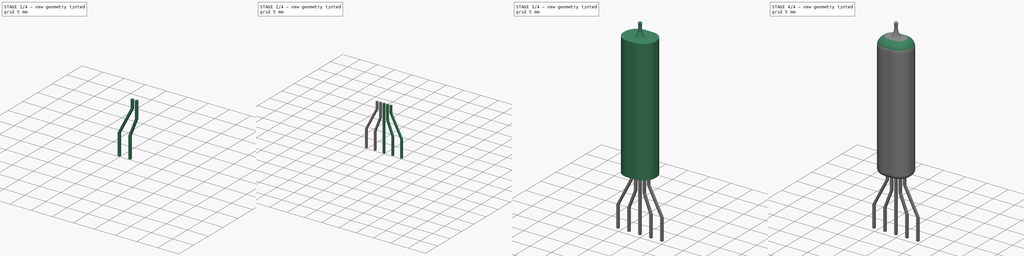
[diagram: build sequence overview — one tinted view per stage of 4, left to right]
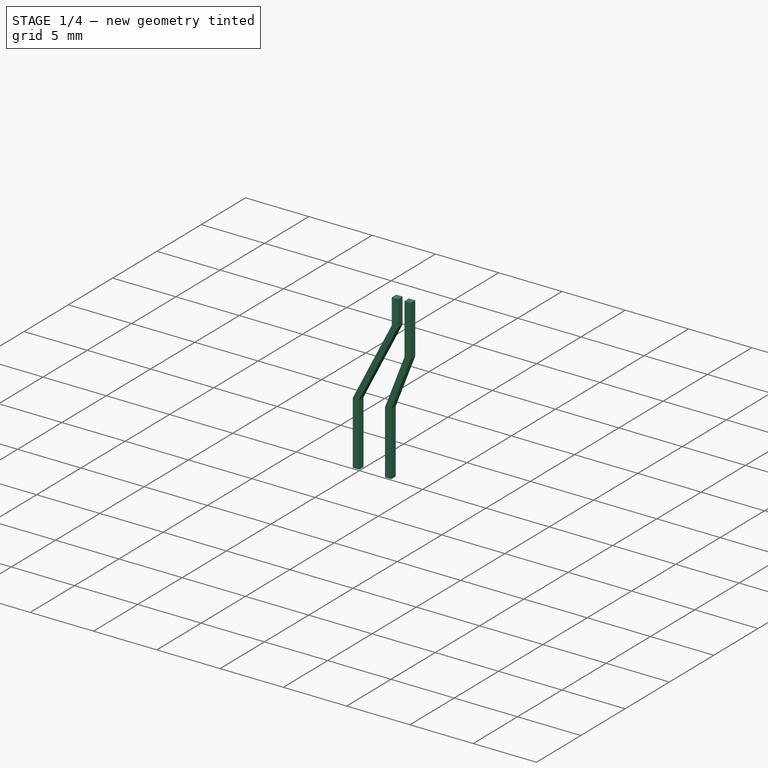
[diagram: stage 1 of 4 — iso view after this stage's code; geometry added in this stage tinted green]
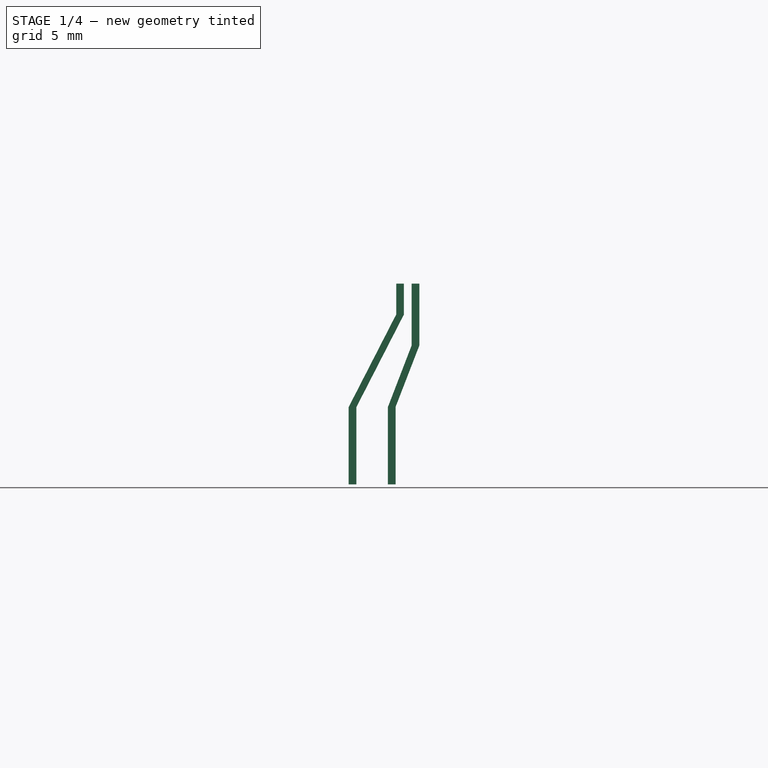
[diagram: stage 1 of 4 — front view after this stage's code; geometry added in this stage tinted green]
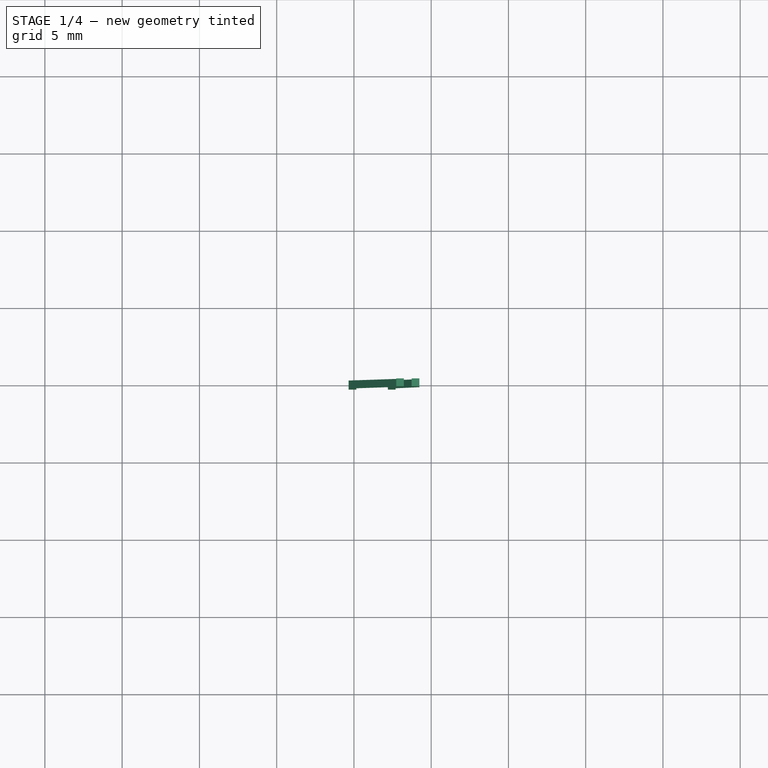
[diagram: stage 1 of 4 — top view after this stage's code; geometry added in this stage tinted green]
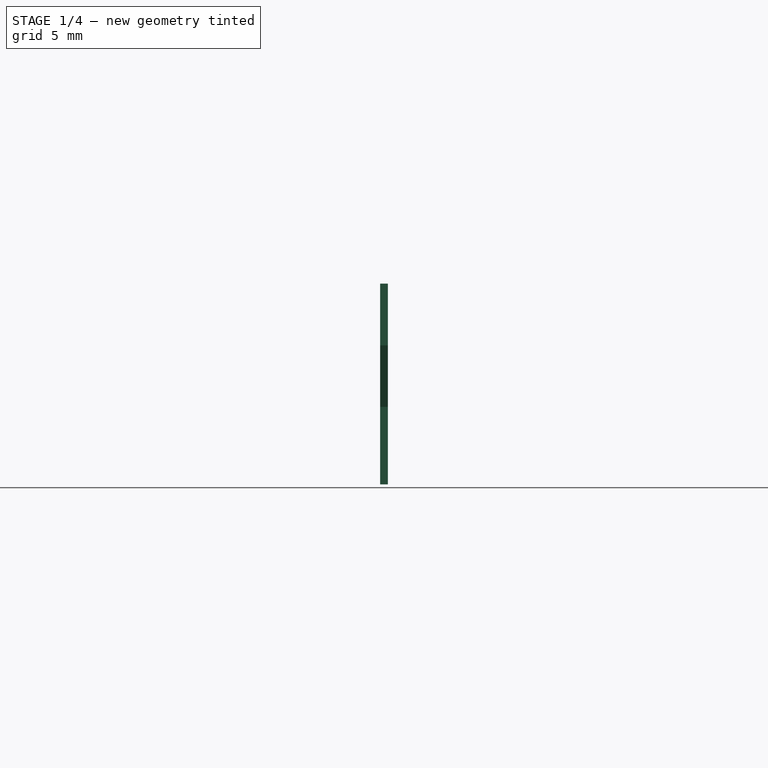
[diagram: stage 1 of 4 — right view after this stage's code; geometry added in this stage tinted green]
FCSTD DOCUMENT  (FreeCAD 0.16R6703 (Git))
Label: valve_6418
License: All rights reserved
LicenseURL: http://en.wikipedia.org/wiki/All_rights_reserved
objects: Sketcher::SketchObject×7, PartDesign::Pad×6, PartDesign::Fillet×3, App::DocumentObjectGroup×1, PartDesign::Revolution×1
note: 24 computed .brp shape members not serialized (recipe doc carries the construction recipe); baked Part::Feature solids carry a one-line shape summary decoded from their .brp

FEATURE [PartDesign::Pad] Pad004
  Length = 0.5
  Length2 = 100
  Midplane = true
  Placement = pos=(0,0,0) rot=(1,0,0;1.5708rad)
  Sketch = -> Sketch005
  Type = 0
FEATURE [PartDesign::Pad] Pad005
  Length = 0.5
  Length2 = 100
  Midplane = true
  Placement = pos=(0,0,0) rot=(1,0,0;1.5708rad)
  Sketch = -> Sketch006
  Type = 0
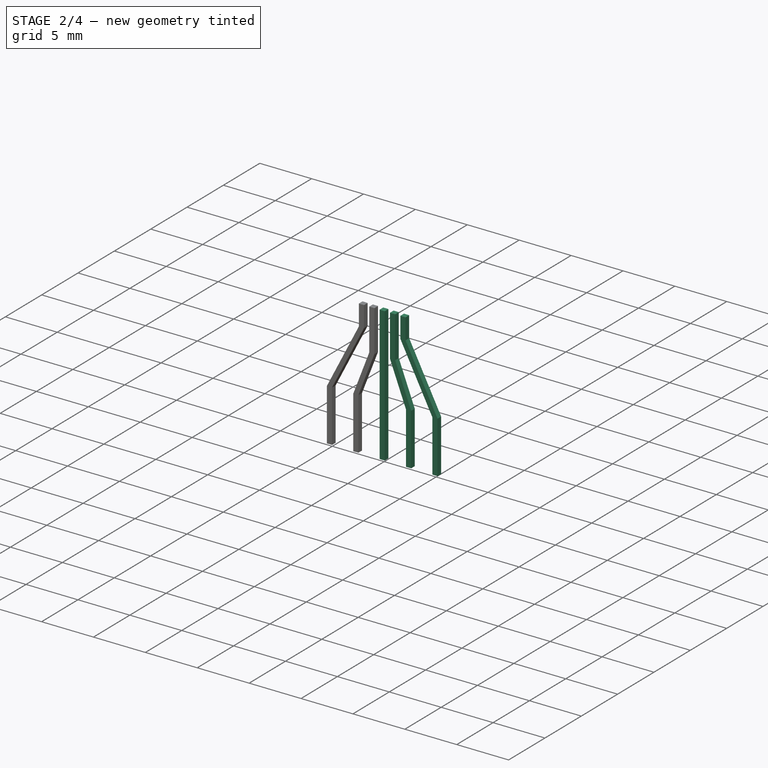
[diagram: stage 2 of 4 — iso view after this stage's code; geometry added in this stage tinted green]
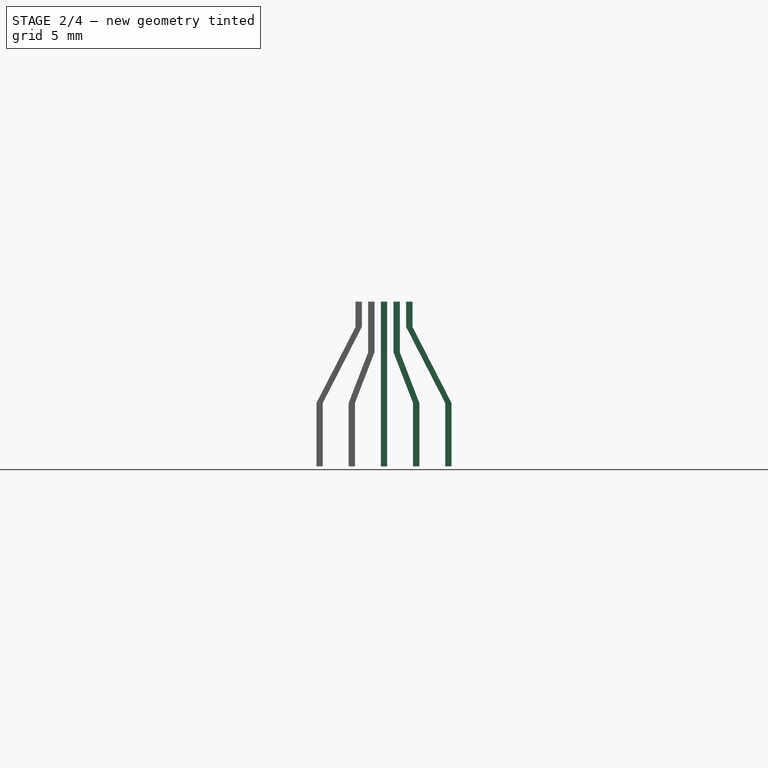
[diagram: stage 2 of 4 — front view after this stage's code; geometry added in this stage tinted green]
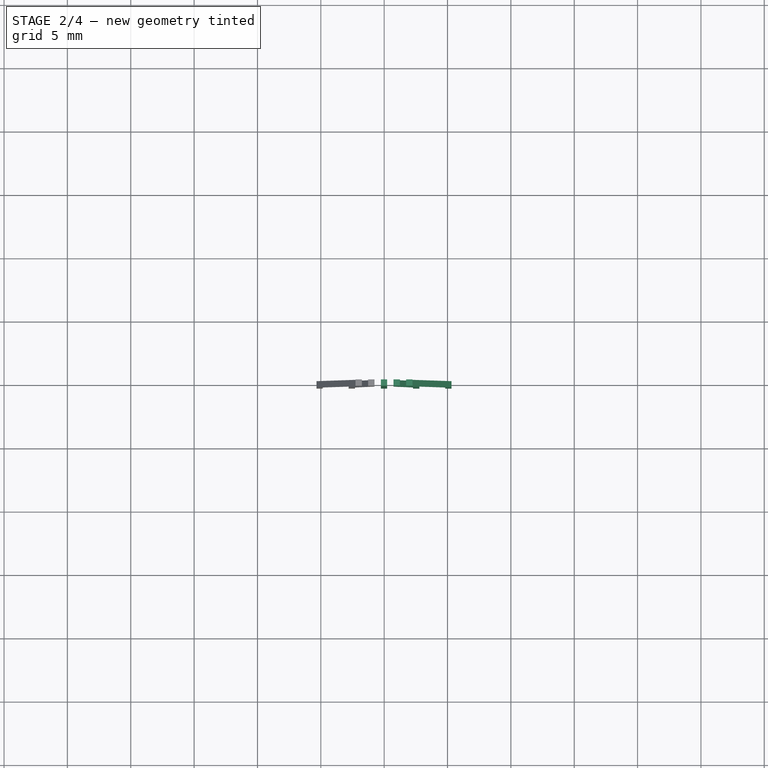
[diagram: stage 2 of 4 — top view after this stage's code; geometry added in this stage tinted green]
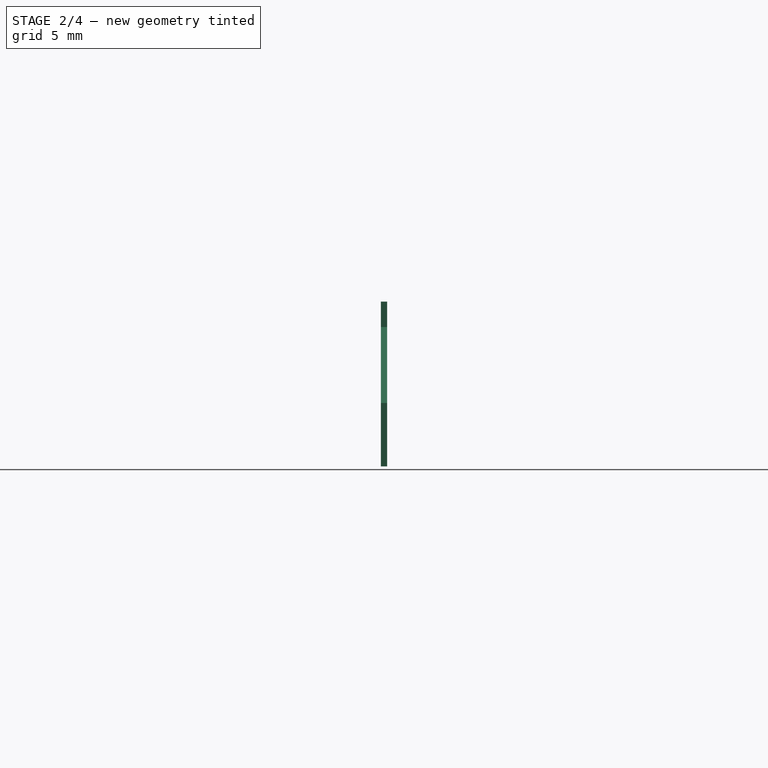
[diagram: stage 2 of 4 — right view after this stage's code; geometry added in this stage tinted green]
FEATURE [Sketcher::SketchObject] Sketch002
  Placement = pos=(0,0,0) rot=(1,0,0;1.5708rad)
  sketch-geometry (10):
    g0: LineSegment [constr] StartX=5.84641 StartY=10.1 StartZ=0 EndX=-7.20765 EndY=10.1 EndZ=0
    g1: LineSegment StartX=1.73621 StartY=10.1 StartZ=0 EndX=2.23621 EndY=10.1 EndZ=0
    g2: LineSegment StartX=2.23621 StartY=10.1 StartZ=0 EndX=2.23621 EndY=8.1 EndZ=0
    g3: LineSegment StartX=1.73621 StartY=8.1 StartZ=0 EndX=1.73621 EndY=10.1 EndZ=0
    g4: LineSegment [constr] StartX=-11.8166 StartY=-2.9 StartZ=0 EndX=11.5151 EndY=-2.9 EndZ=0
    g5: LineSegment StartX=4.81621 StartY=-2.9 StartZ=0 EndX=5.31621 EndY=-2.9 EndZ=0
    g6: LineSegment StartX=5.31621 StartY=-2.9 StartZ=0 EndX=5.31621 EndY=2.1 EndZ=0
    g7: LineSegment StartX=4.81621 StartY=2.1 StartZ=0 EndX=4.81621 EndY=-2.9 EndZ=0
    g8: LineSegment StartX=2.23621 StartY=8.1 StartZ=0 EndX=5.31621 EndY=2.1 EndZ=0
    g9: LineSegment StartX=4.81621 StartY=2.1 StartZ=0 EndX=1.73621 EndY=8.1 EndZ=0
  constraints (22):
    c: Horizontal(g0)
    c: Coincident(g1,g2)
    c: Coincident(g3,g1)
    c: Horizontal(g1)
    c: Vertical(g2)
    c: Vertical(g3)
    c: PointOnObject(g1,g0)
    c: DistanceX(g1,g1) = 0.5
    c: Horizontal(g4)
    c: Coincident(g5,g6)
    c: Coincident(g7,g5)
    c: Horizontal(g5)
    c: Vertical(g6)
    c: Vertical(g7)
    c: PointOnObject(g5,g4)
    c: DistanceX(g5,g5) = 0.5
    c: DistanceY(g7,g7) = 5
    c: DistanceY(g2,g2) = 2
    c: Coincident(g8,g2)
    c: Coincident(g8,g6)
    c: Coincident(g9,g7)
    c: Coincident(g9,g3)
FEATURE [Sketcher::SketchObject] Sketch003
  Placement = pos=(0,0,0) rot=(1,0,0;1.5708rad)
  sketch-geometry (10):
    g0: LineSegment [constr] StartX=5.84641 StartY=10.1 StartZ=0 EndX=-7.20765 EndY=10.1 EndZ=0
    g1: LineSegment StartX=0.736213 StartY=10.1 StartZ=0 EndX=1.23621 EndY=10.1 EndZ=0
    g2: LineSegment StartX=1.23621 StartY=10.1 StartZ=0 EndX=1.23621 EndY=6.1 EndZ=0
    g3: LineSegment StartX=0.736213 StartY=6.1 StartZ=0 EndX=0.736213 EndY=10.1 EndZ=0
    g4: LineSegment [constr] StartX=-11.8166 StartY=-2.9 StartZ=0 EndX=11.5151 EndY=-2.9 EndZ=0
    g5: LineSegment StartX=2.27621 StartY=-2.9 StartZ=0 EndX=2.77621 EndY=-2.9 EndZ=0
    g6: LineSegment StartX=2.77621 StartY=-2.9 StartZ=0 EndX=2.77621 EndY=2.1 EndZ=0
    g7: LineSegment StartX=2.27621 StartY=2.1 StartZ=0 EndX=2.27621 EndY=-2.9 EndZ=0
    g8: LineSegment StartX=1.23621 StartY=6.1 StartZ=0 EndX=2.77621 EndY=2.1 EndZ=0
    g9: LineSegment StartX=2.27621 StartY=2.1 StartZ=0 EndX=0.736213 EndY=6.1 EndZ=0
  constraints (22):
    c: Horizontal(g0)
    c: Coincident(g1,g2)
    c: Coincident(g3,g1)
    c: Horizontal(g1)
    c: Vertical(g2)
    c: Vertical(g3)
    c: DistanceX(g1,g1) = 0.5
    c: PointOnObject(g1,g0)
    c: Horizontal(g4)
    c: Coincident(g5,g6)
    c: Coincident(g7,g5)
    c: Horizontal(g5)
    c: Vertical(g6)
    c: Vertical(g7)
    c: PointOnObject(g5,g4)
    c: DistanceX(g5,g5) = 0.5
    c: DistanceY(g7,g7) = 5
    c: DistanceY(g2,g2) = 4
    c: Coincident(g8,g2)
    c: Coincident(g8,g6)
    c: Coincident(g9,g7)
    c: Coincident(g9,g3)
FEATURE [Sketcher::SketchObject] Sketch004
  Placement = pos=(0,0,0) rot=(1,0,0;1.5708rad)
  sketch-geometry (7):
    g0: LineSegment StartX=-0.263787 StartY=10.1 StartZ=0 EndX=0.236213 EndY=10.1 EndZ=0
    g1: LineSegment StartX=0.236213 StartY=10.1 StartZ=0 EndX=0.236213 EndY=-2.9 EndZ=0
    g2: LineSegment StartX=0.236213 StartY=-2.9 StartZ=0 EndX=-0.263787 EndY=-2.9 EndZ=0
    g3: LineSegment StartX=-0.263787 StartY=-2.9 StartZ=0 EndX=-0.263787 EndY=10.1 EndZ=0
    g4: GeomPoint [constr] X=0 Y=0 Z=0
    g5: LineSegment [constr] StartX=5.84641 StartY=10.1 StartZ=0 EndX=-7.20765 EndY=10.1 EndZ=0
    g6: LineSegment [constr] StartX=-11.8166 StartY=-2.9 StartZ=0 EndX=11.5151 EndY=-2.9 EndZ=0
  constraints (16):
    c: Coincident(g0,g1)
    c: Coincident(g1,g2)
    c: Coincident(g2,g3)
    c: Coincident(g3,g0)
    c: Horizontal(g0)
    c: Horizontal(g2)
    c: Vertical(g1)
    c: Vertical(g3)
    c: DistanceX(g2,g2) = 0.5
    c: DistanceY(g1,g1) = 13
    c: Coincident(g4,g-1)
    c: Distance(g-1,g2) = 2.9
    c: Horizontal(g5)
    c: PointOnObject(g0,g5)
    c: Horizontal(g6)
    c: PointOnObject(g1,g6)
FEATURE [Sketcher::SketchObject] Sketch005
  Placement = pos=(0,0,0) rot=(1,0,0;1.5708rad)
  sketch-geometry (10):
    g0: LineSegment [constr] StartX=5.84641 StartY=10.1 StartZ=0 EndX=-7.20765 EndY=10.1 EndZ=0
    g1: LineSegment StartX=-0.763787 StartY=10.1 StartZ=0 EndX=-1.26379 EndY=10.1 EndZ=0
    g2: LineSegment StartX=-1.26379 StartY=10.1 StartZ=0 EndX=-1.26379 EndY=6.1 EndZ=0
    g3: LineSegment StartX=-0.763787 StartY=6.1 StartZ=0 EndX=-0.763787 EndY=10.1 EndZ=0
    g4: LineSegment [constr] StartX=-11.8166 StartY=-2.9 StartZ=0 EndX=11.5151 EndY=-2.9 EndZ=0
    g5: LineSegment StartX=-2.30379 StartY=-2.9 StartZ=0 EndX=-2.80379 EndY=-2.9 EndZ=0
    g6: LineSegment StartX=-2.80379 StartY=-2.9 StartZ=0 EndX=-2.80379 EndY=2.1 EndZ=0
    g7: LineSegment StartX=-2.30379 StartY=2.11735 StartZ=0 EndX=-2.30379 EndY=-2.9 EndZ=0
    g8: LineSegment StartX=-2.80379 StartY=2.1 StartZ=0 EndX=-1.26379 EndY=6.1 EndZ=0
    g9: LineSegment StartX=-0.763787 StartY=6.1 StartZ=0 EndX=-2.30379 EndY=2.11735 EndZ=0
  constraints (22):
    c: Horizontal(g0)
    c: Coincident(g1,g2)
    c: Coincident(g3,g1)
    c: Horizontal(g1)
    c: Vertical(g2)
    c: Vertical(g3)
    c: PointOnObject(g1,g0)
    c: DistanceX(g1,g1) = 0.5
    c: Horizontal(g4)
    c: Coincident(g5,g6)
    c: Coincident(g7,g5)
    c: Horizontal(g5)
    c: Vertical(g6)
    c: Vertical(g7)
    c: PointOnObject(g5,g4)
    c: DistanceX(g5,g5) = 0.5
    c: DistanceY(g6,g6) = 5
    c: DistanceY(g3,g3) = 4
    c: Coincident(g8,g6)
    c: Coincident(g8,g2)
    c: Coincident(g9,g3)
    c: Coincident(g9,g7)
FEATURE [Sketcher::SketchObject] Sketch006
  Placement = pos=(0,0,0) rot=(1,0,0;1.5708rad)
  sketch-geometry (10):
    g0: LineSegment [constr] StartX=5.84641 StartY=10.1 StartZ=0 EndX=-7.20765 EndY=10.1 EndZ=0
    g1: LineSegment StartX=-1.76379 StartY=10.1 StartZ=0 EndX=-2.26379 EndY=10.1 EndZ=0
    g2: LineSegment StartX=-2.26379 StartY=10.1 StartZ=0 EndX=-2.26379 EndY=8.1 EndZ=0
    g3: LineSegment StartX=-1.76379 StartY=8.1 StartZ=0 EndX=-1.76379 EndY=10.1 EndZ=0
    g4: LineSegment [constr] StartX=-11.8166 StartY=-2.9 StartZ=0 EndX=11.5151 EndY=-2.9 EndZ=0
    g5: LineSegment StartX=-4.84379 StartY=-2.9 StartZ=0 EndX=-5.34379 EndY=-2.9 EndZ=0
    g6: LineSegment StartX=-5.34379 StartY=-2.9 StartZ=0 EndX=-5.34379 EndY=2.1 EndZ=0
    g7: LineSegment StartX=-4.84379 StartY=2.1 StartZ=0 EndX=-4.84379 EndY=-2.9 EndZ=0
    g8: LineSegment StartX=-4.84379 StartY=2.1 StartZ=0 EndX=-1.76379 EndY=8.1 EndZ=0
    g9: LineSegment StartX=-2.26379 StartY=8.1 StartZ=0 EndX=-5.34379 EndY=2.1 EndZ=0
  constraints (22):
    c: Horizontal(g0)
    c: Coincident(g1,g2)
    c: Coincident(g3,g1)
    c: Horizontal(g1)
    c: Vertical(g2)
    c: Vertical(g3)
    c: PointOnObject(g1,g0)
    c: DistanceX(g1,g1) = 0.5
    c: Horizontal(g4)
    c: Coincident(g5,g6)
    c: Coincident(g7,g5)
    c: Horizontal(g5)
    c: Vertical(g6)
    c: Vertical(g7)
    c: PointOnObject(g5,g4)
    c: DistanceX(g5,g5) = 0.5
    c: DistanceY(g6,g6) = 5
    c: DistanceY(g2,g2) = 2
    c: Coincident(g8,g7)
    c: Coincident(g8,g3)
    c: Coincident(g9,g2)
    c: Coincident(g9,g6)
FEATURE [PartDesign::Pad] Pad001
  Length = 0.5
  Length2 = 100
  Midplane = true
  Placement = pos=(0,0,0) rot=(1,0,0;1.5708rad)
  Sketch = -> Sketch002
  Type = 0
FEATURE [PartDesign::Pad] Pad002
  Length = 0.5
  Length2 = 100
  Midplane = true
  Placement = pos=(0,0,0) rot=(1,0,0;1.5708rad)
  Sketch = -> Sketch003
  Type = 0
FEATURE [PartDesign::Pad] Pad003
  Length = 0.5
  Length2 = 100
  Midplane = true
  Placement = pos=(0,0,0) rot=(1,0,0;1.5708rad)
  Sketch = -> Sketch004
  Type = 0
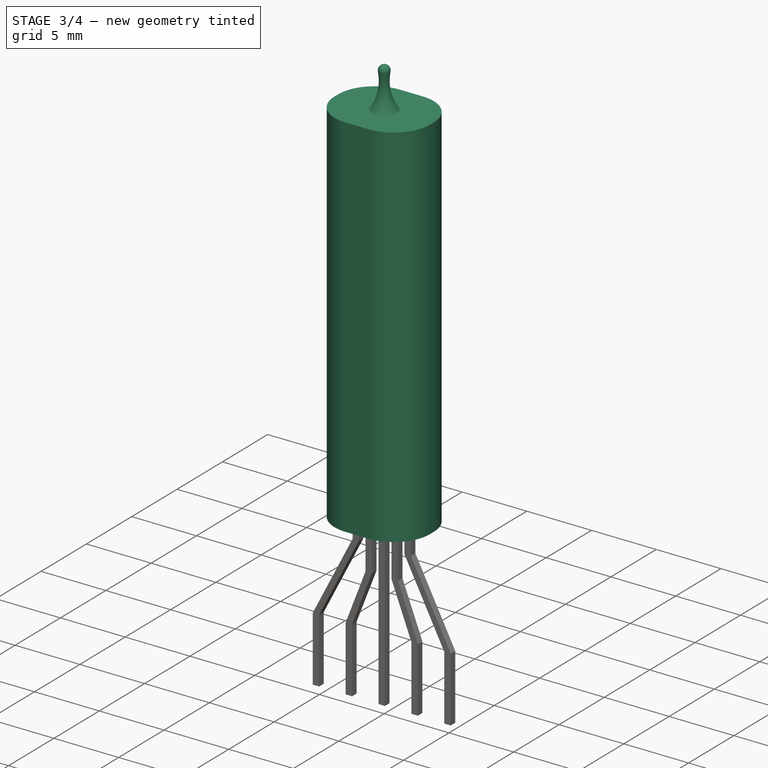
[diagram: stage 3 of 4 — iso view after this stage's code; geometry added in this stage tinted green]
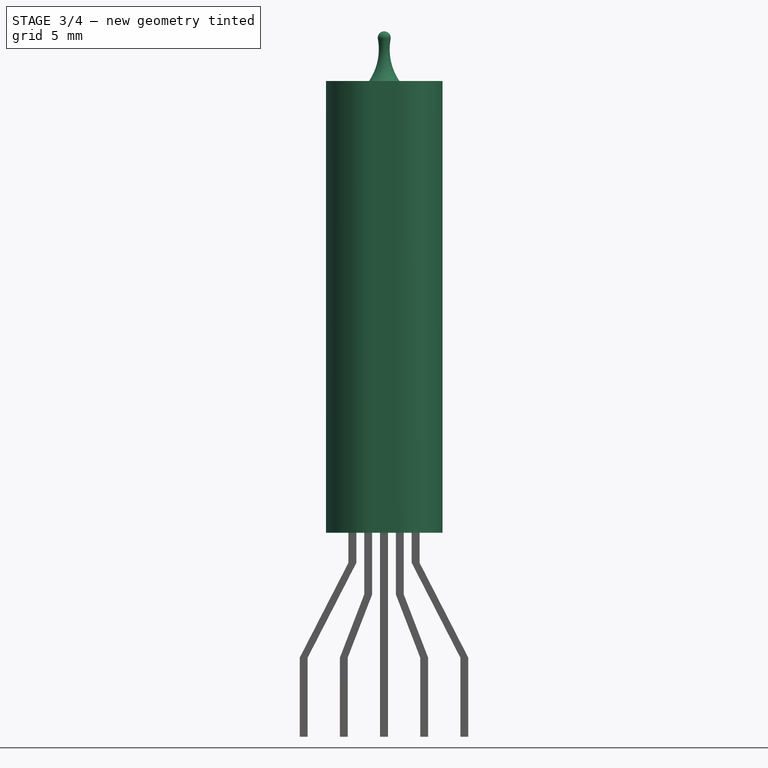
[diagram: stage 3 of 4 — front view after this stage's code; geometry added in this stage tinted green]
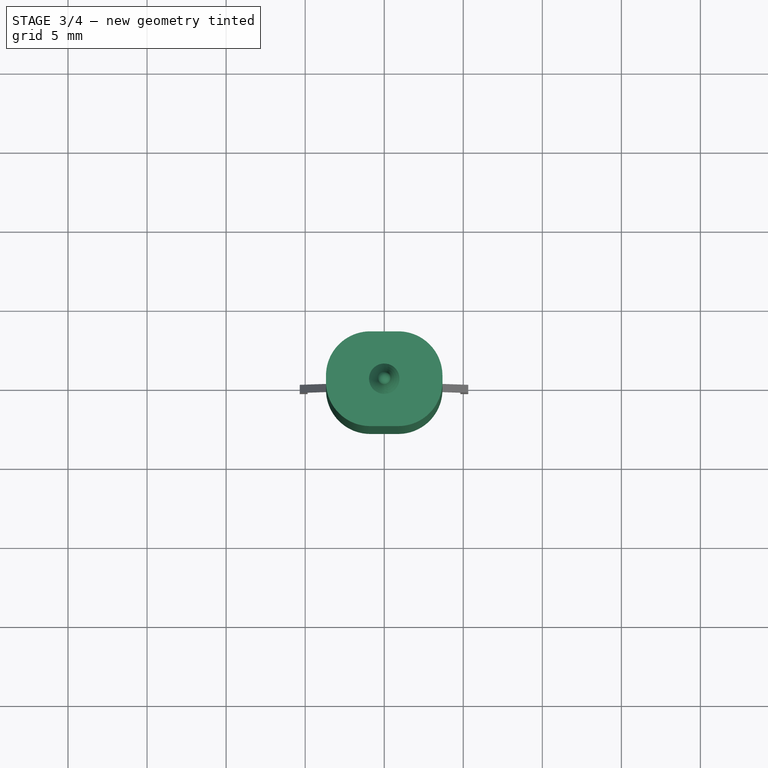
[diagram: stage 3 of 4 — top view after this stage's code; geometry added in this stage tinted green]
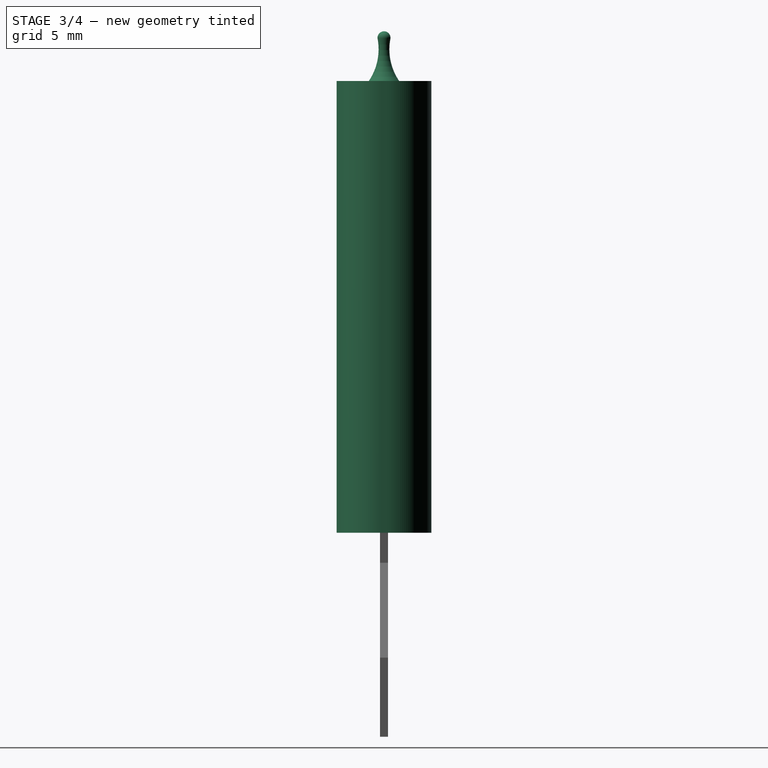
[diagram: stage 3 of 4 — right view after this stage's code; geometry added in this stage tinted green]
FEATURE [Sketcher::SketchObject] Sketch
  Placement = pos=(0,0,0) rot=(1,0,0;1.5708rad)
  sketch-geometry (6):
    g0: LineSegment [constr] StartX=0 StartY=0 StartZ=0 EndX=0 EndY=106.115 EndZ=0
    g1: LineSegment StartX=-3.683 StartY=10 StartZ=0 EndX=-3.683 EndY=38.575 EndZ=0
    g2: LineSegment StartX=-3.683 StartY=10 StartZ=0 EndX=0 EndY=10 EndZ=0
    g3: LineSegment StartX=0 StartY=10 StartZ=0 EndX=3.683 EndY=10 EndZ=0
    g4: LineSegment StartX=3.683 StartY=10 StartZ=0 EndX=3.683 EndY=38.575 EndZ=0
    g5: LineSegment StartX=-3.683 StartY=38.575 StartZ=0 EndX=3.683 EndY=38.575 EndZ=0
  constraints (17):
    c: Coincident(g0,g-1)
    c: PointOnObject(g0,g-2)
    c: Parallel(g1,g0)
    c: Coincident(g2,g1)
    c: PointOnObject(g2,g0)
    c: Horizontal(g2)
    c: DistanceX(g2,g2) = 3.683  'w2'
    c: DistanceY(g1,g1) = 28.575  'Constraint9'
    c: Coincident(g3,g2)
    c: Horizontal(g3)
    c: Coincident(g4,g3)
    c: Vertical(g4)
    c: DistanceX(g3,g3) = 3.683
    c: Coincident(g5,g1)
    c: Coincident(g5,g4)
    c: Horizontal(g5)
    c: DistanceY(g-1,g2) = 10
FEATURE [PartDesign::Pad] Pad
  Length = 5.9944
  Length2 = 100
  Midplane = true
  Placement = pos=(0,0,0) rot=(1,0,0;1.5708rad)
  Sketch = -> Sketch
  Type = 0
FEATURE [PartDesign::Fillet] Fillet
  Base = -> Pad [Edge10,Edge9,Edge4,Edge3]
  Placement = pos=(0,0,0) rot=(1,0,0;1.5708rad)
  Radius = 2.8
FEATURE [Sketcher::SketchObject] Sketch001
  Placement = pos=(0,0,0) rot=(1,0,0;1.5708rad)
  sketch-geometry (4):
    g0: ArcOfCircle CenterX=0 CenterY=41.3096 CenterZ=0 NormalX=0 NormalY=0 NormalZ=1 Radius=0.409155 StartAngle=1.57696 EndAngle=3.33448
    g1: ArcOfCircle CenterX=-3.91743 CenterY=40.5841 CenterZ=0 NormalX=0 NormalY=0 NormalZ=1 Radius=3.57492 StartAngle=5.6758 EndAngle=6.46521
    g2: LineSegment StartX=-0.00252031 StartY=41.7188 StartZ=0 EndX=-0.00252031 EndY=38.5438 EndZ=0
    g3: LineSegment StartX=-0.00252031 StartY=38.5438 StartZ=0 EndX=-0.981911 EndY=38.5438 EndZ=0
  constraints (8):
    c: PointOnObject(g0,g-2)
    c: Coincident(g1,g0)
    c: Coincident(g2,g0)
    c: Vertical(g2)
    c: Coincident(g3,g2)
    c: Coincident(g3,g1)
    c: Horizontal(g3)
    c: DistanceY(g2,g2) = 3.175
FEATURE [App::DocumentObjectGroup] Group
  Group = -> [Pad,Fillet,Fillet001,Fillet002]
FEATURE [PartDesign::Revolution] Revolution
  Angle = 360
  Axis = (0,0,1)
  Base = (0,0,0)
  Placement = pos=(0,0,0) rot=(1,0,0;1.5708rad)
  ReferenceAxis = -> Sketch001 [V_Axis]
  Sketch = -> Sketch001
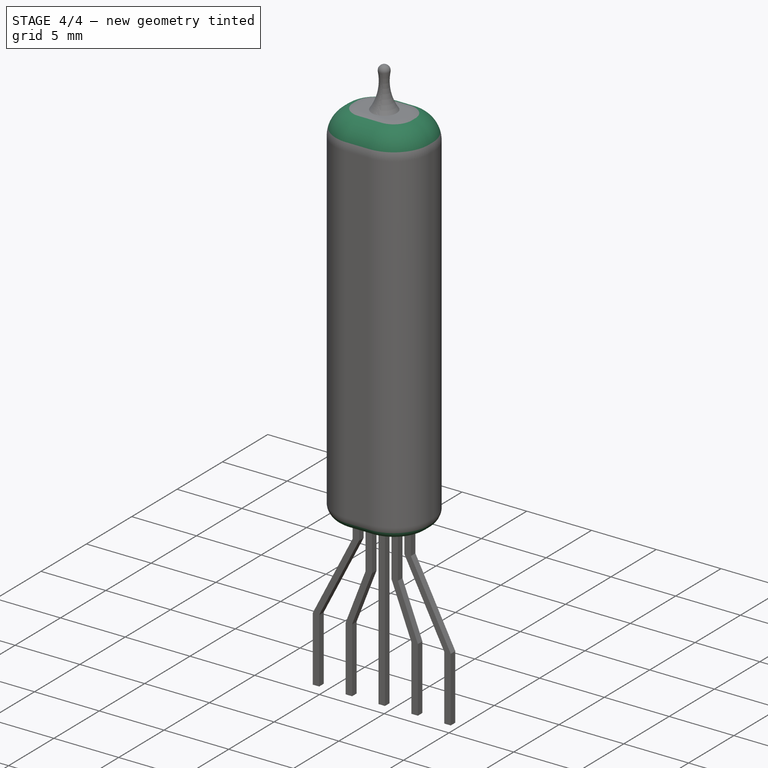
[diagram: stage 4 of 4 — iso view after this stage's code; geometry added in this stage tinted green]
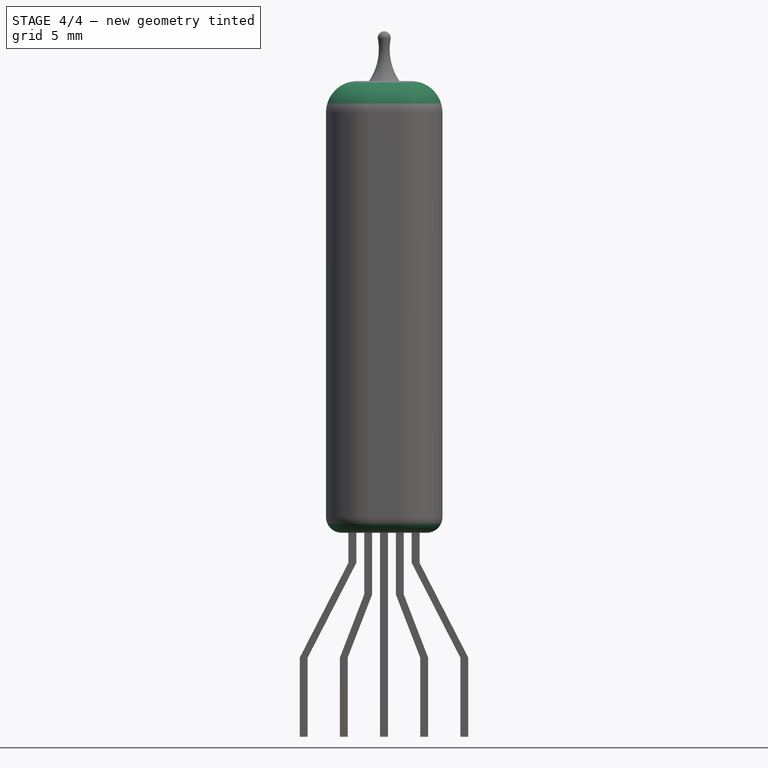
[diagram: stage 4 of 4 — front view after this stage's code; geometry added in this stage tinted green]
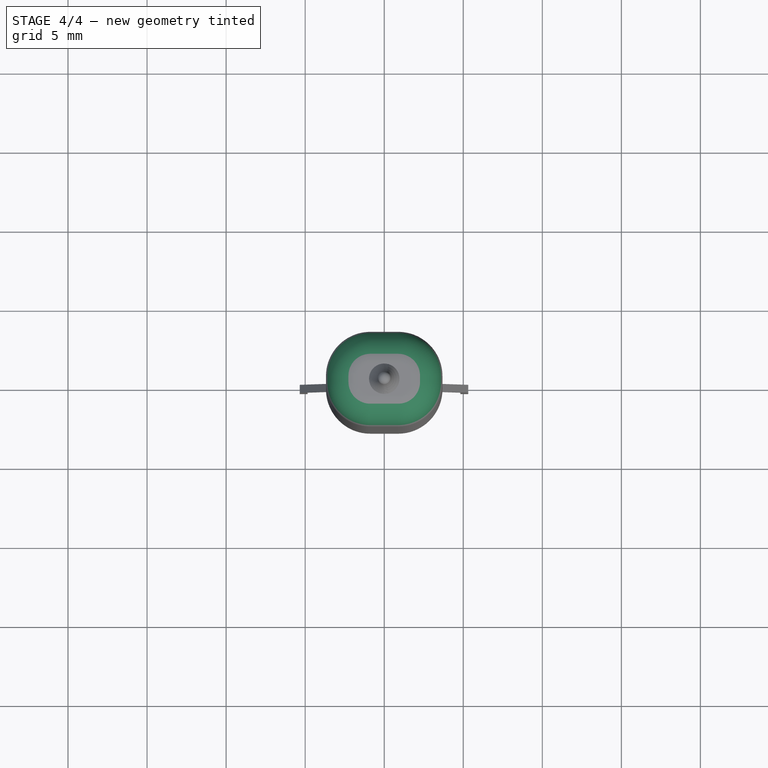
[diagram: stage 4 of 4 — top view after this stage's code; geometry added in this stage tinted green]
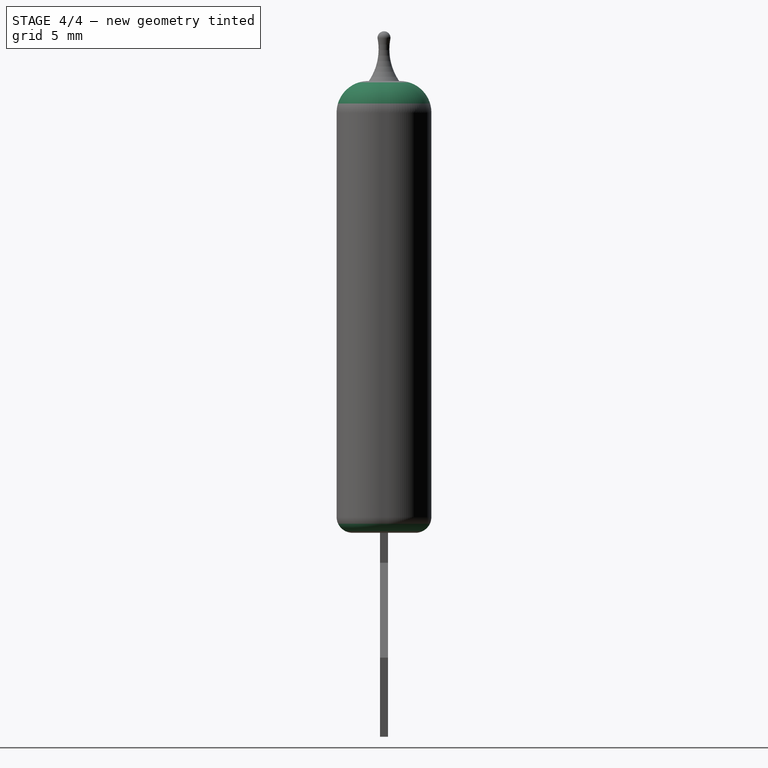
[diagram: stage 4 of 4 — right view after this stage's code; geometry added in this stage tinted green]
FEATURE [PartDesign::Fillet] Fillet001
  Base = -> Fillet [Edge16,Edge14,Edge11,Edge13,Edge15,Edge17,Edge18,Edge4]
  Placement = pos=(0,0,0) rot=(1,0,0;1.5708rad)
  Radius = 2
FEATURE [PartDesign::Fillet] Fillet002
  Base = -> Fillet001 [Edge34,Edge32,Edge33,Edge12,Edge21,Edge31,Edge13,Edge11,Edge3,Edge6]
  Placement = pos=(0,0,0) rot=(1,0,0;1.5708rad)
  Radius = 1
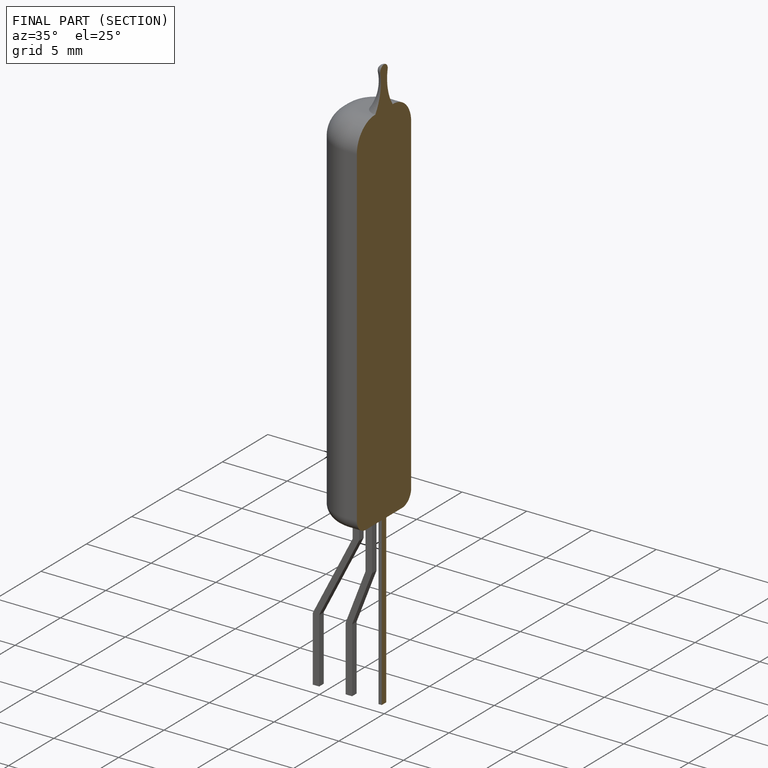
[diagram: finished part — half-section view (interior)]
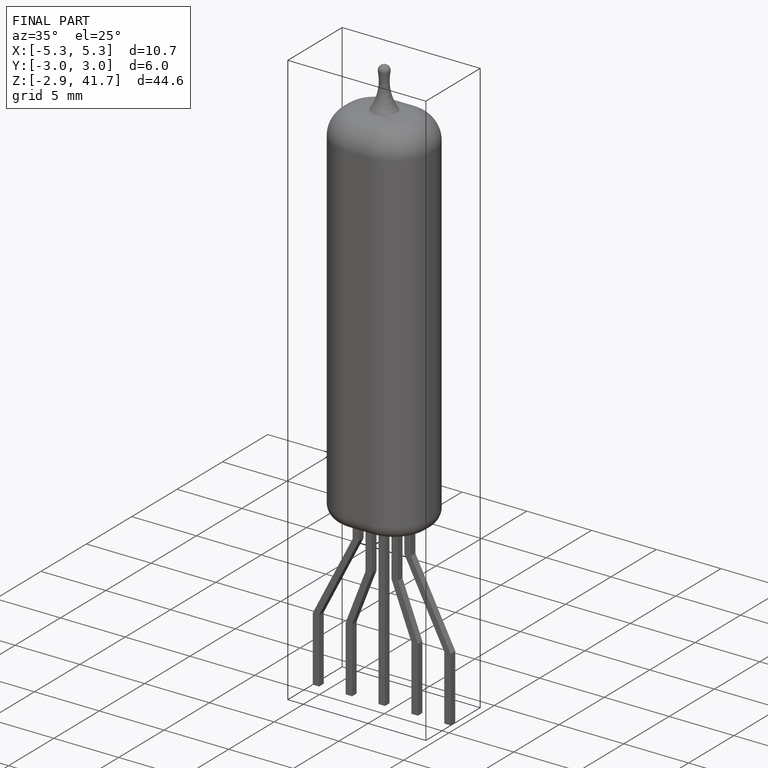
[diagram: finished part — iso view with bounding-box wireframe]
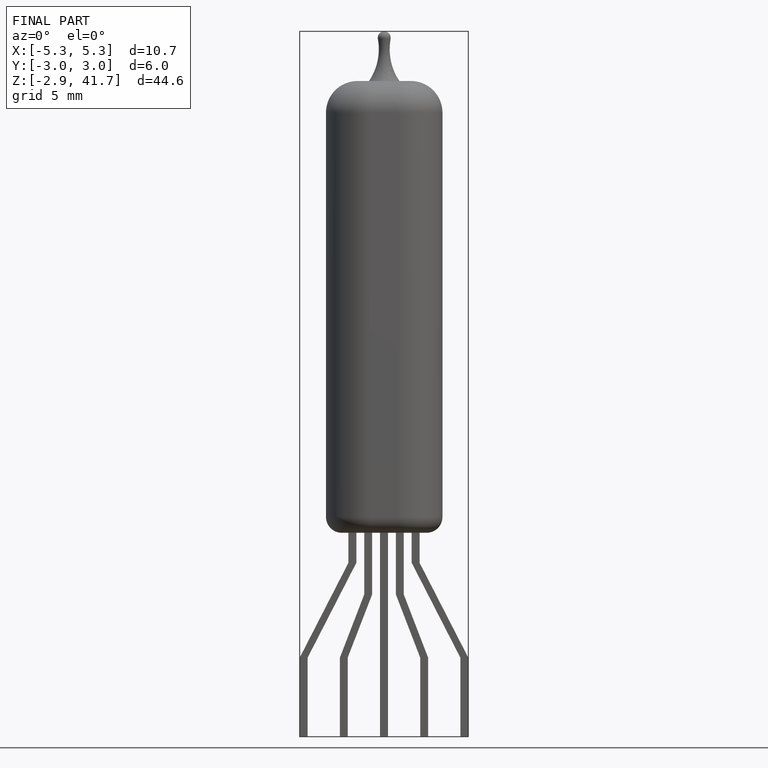
[diagram: finished part — front view with bounding-box wireframe]
